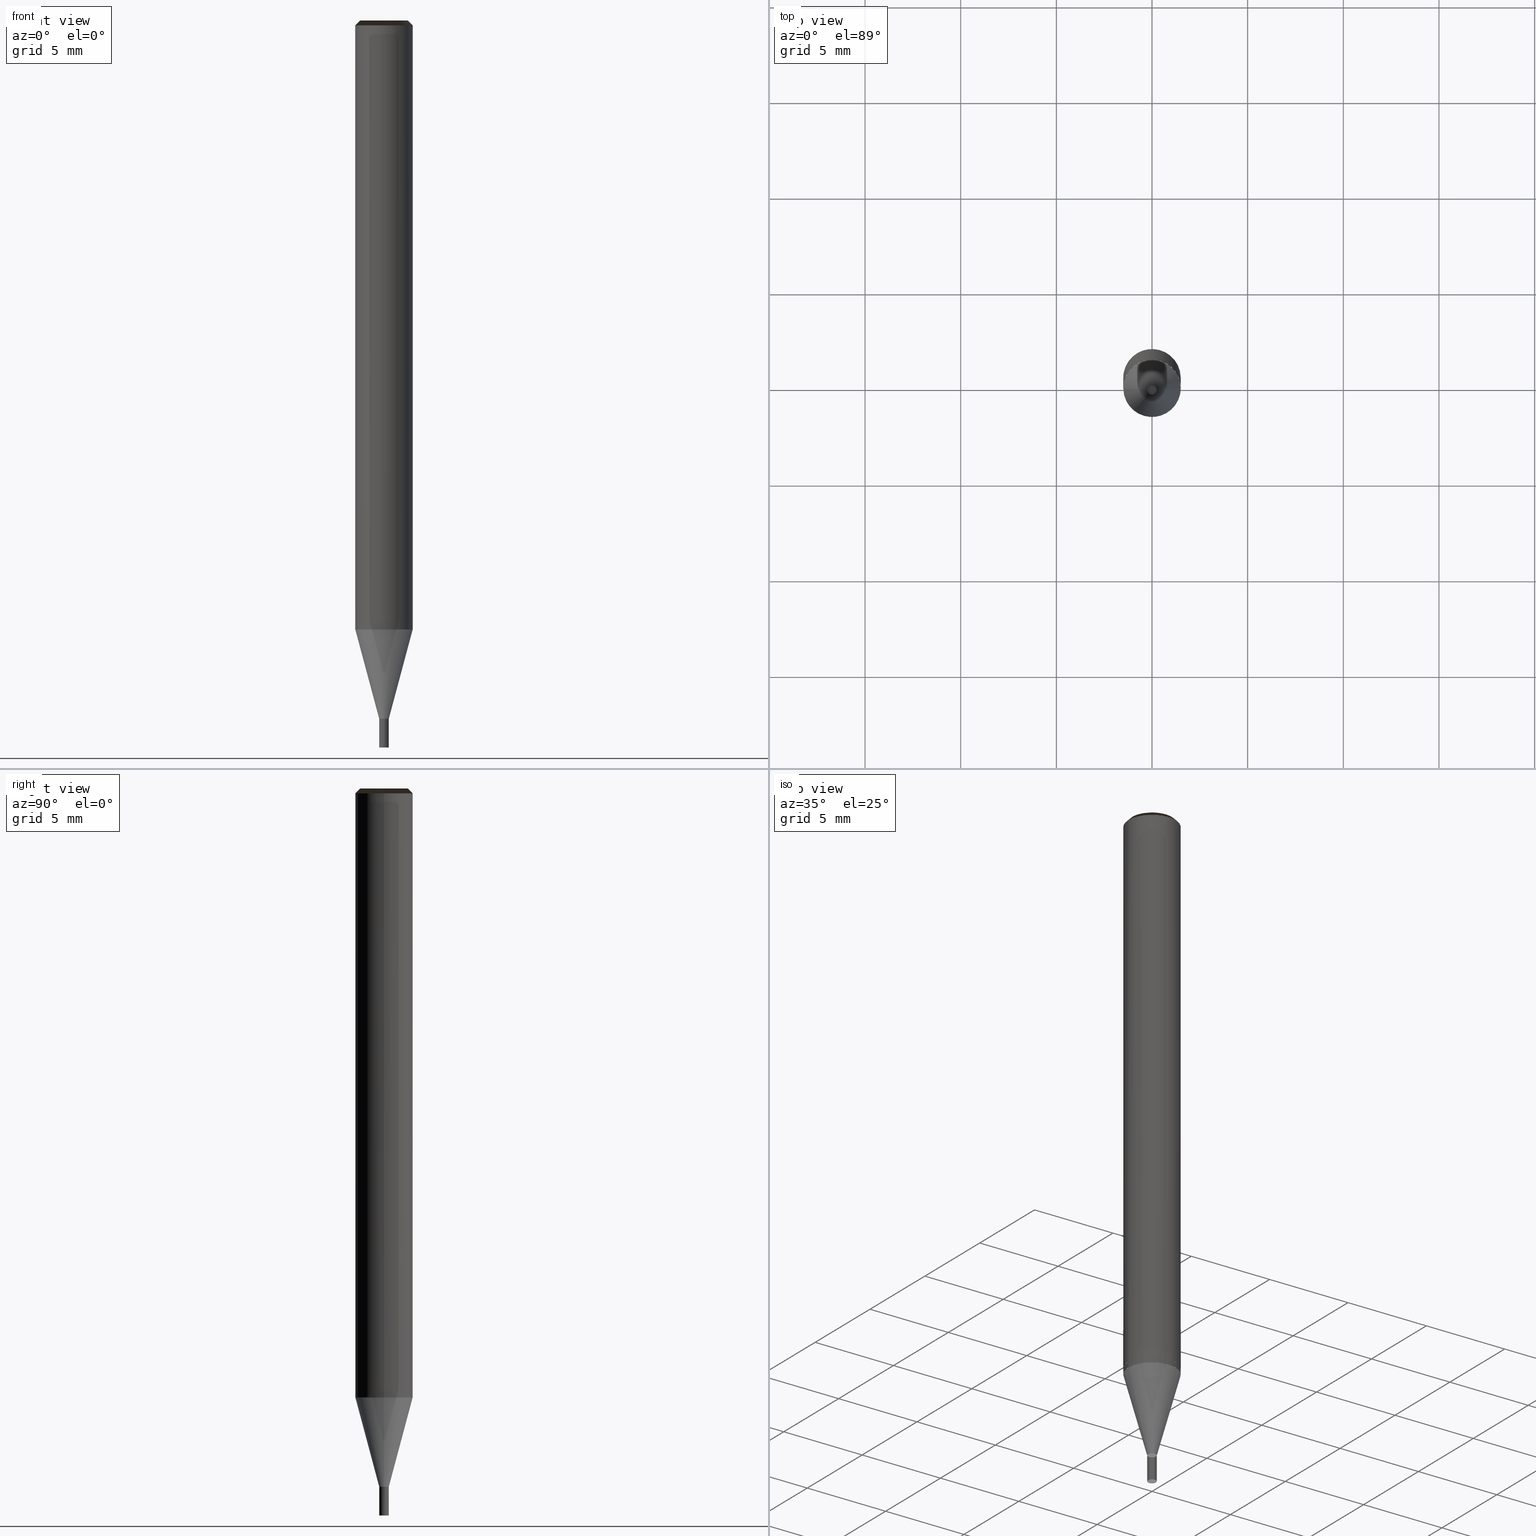
[diagram: canonical four-view strip — front | top / right | iso, engineering-drawing reading convention]
A machine part, canonical four-view strip (front | top / right | iso — engineering-drawing reading convention). The complete STEP part file that produces these views, byte-faithful:
ISO-10303-21;
HEADER;
/* Generated by ISBE GmbH (www.isbe.de) */
/* OPTION: using custom schema-name function */

FILE_DESCRIPTION(
/* description */ (''),
/* implementation_level */ '2;1');

FILE_NAME(
/*name*/ 'Drawing No  1000050',
/*time_stamp*/'2021-9-29T13:37:19',
/*author*/ ('ISBE GmbH'),
/*organization*/ ('ISBE GmbH'),
/*preprocessor_version*/ 'STEP IO v1.0',
/*originating_system*/ '',
/*authorisation*/ '');

FILE_SCHEMA (('AUTOMOTIVE_DESIGN'));
ENDSEC;

DATA;
#10=SHAPE_DEFINITION_REPRESENTATION(#11,#57);
#11=PRODUCT_DEFINITION_SHAPE('Document','',#13);
#12=PRODUCT_DEFINITION_CONTEXT('3D Mechanical Parts',#17,'design');
#13=PRODUCT_DEFINITION('A','First version',#14,#12);
#14=PRODUCT_DEFINITION_FORMATION_WITH_SPECIFIED_SOURCE('A','First version',#19,.MADE.);
#15=PRODUCT_RELATED_PRODUCT_CATEGORY('tool','tool',(#19));
#16=APPLICATION_PROTOCOL_DEFINITION('Draft International Standard', 'automotive_design',1999,#17);
#17=APPLICATION_CONTEXT('data for automotive mechanical design processes');
#18=PRODUCT_CONTEXT('3D Mechanical Parts',#17,'mechanical');
#19=PRODUCT('Document','Document','ISBE converted to STEP',(#18));
#20=(
LENGTH_UNIT()
NAMED_UNIT(*)
SI_UNIT(.MILLI.,.METRE.)
);
#21=(
NAMED_UNIT(*)
PLANE_ANGLE_UNIT()
SI_UNIT($,.RADIAN.)
);
#22=DIMENSIONAL_EXPONENTS(0.,0.,0.,0.,0.,0.,0.);
#23=PLANE_ANGLE_MEASURE_WITH_UNIT(PLANE_ANGLE_MEASURE(0.01745329252),#21);
#24=(
CONVERSION_BASED_UNIT('DEGREES',#23)
NAMED_UNIT(#22)
PLANE_ANGLE_UNIT()
);
#25=(
NAMED_UNIT(*)
SI_UNIT($,.STERADIAN.)
SOLID_ANGLE_UNIT()
);
#26=UNCERTAINTY_MEASURE_WITH_UNIT(LENGTH_MEASURE(0.001),#20, 'DISTANCE_ACCURACY_VALUE', 'Maximum model space distance between geometric entities at asserted connectivities');
#27=(
GEOMETRIC_REPRESENTATION_CONTEXT(3)
GLOBAL_UNCERTAINTY_ASSIGNED_CONTEXT((#26))
GLOBAL_UNIT_ASSIGNED_CONTEXT((#25,#24,#20))
REPRESENTATION_CONTEXT('ID1','3D')
);
#28=CARTESIAN_POINT('',(0.0,0.0,0.0));
#29=DIRECTION('',(1.0,0.0,0.0));
#30=DIRECTION('',(0.0,0.0,1.0));
#31=AXIS2_PLACEMENT_3D('',#28,#30,#29);
#32=CARTESIAN_POINT('',(0.0,0.0,0.0));
#33=DIRECTION('',(1.0,0.0,0.0));
#34=DIRECTION('',(0.0,0.0,1.0));
#35=AXIS2_PLACEMENT_3D('',#32,#34,#33);
#36=CARTESIAN_POINT('',(0.0,0.0,0.0));
#37=DIRECTION('',(1.0,0.0,0.0));
#38=DIRECTION('',(0.0,0.0,1.0));
#39=AXIS2_PLACEMENT_3D('',#36,#38,#37);
#40=CARTESIAN_POINT('',(0.0,0.0,0.0));
#41=DIRECTION('',(0.0,0.0,1.0));
#42=DIRECTION('',(1.0,0.0,0.0));
#43=AXIS2_PLACEMENT_3D('MCS',#40,#42,#41);
#44=CARTESIAN_POINT('',(0.0,0.0,31.5));
#45=DIRECTION('',(0.0,0.0,1.0));
#46=DIRECTION('',(1.0,0.0,0.0));
#47=AXIS2_PLACEMENT_3D('PCS',#44,#46,#45);
#48=CARTESIAN_POINT('',(0.0,0.0,-6.5));
#49=DIRECTION('',(0.0,0.0,1.0));
#50=DIRECTION('',(1.0,0.0,0.0));
#51=AXIS2_PLACEMENT_3D('CIP',#48,#50,#49);
#52=CARTESIAN_POINT('',(0.0,-0.25,-6.5));
#53=DIRECTION('',(0.0,0.0,1.0));
#54=DIRECTION('',(1.0,0.0,0.0));
#55=AXIS2_PLACEMENT_3D('CRP',#52,#54,#53);
#57=SHAPE_REPRESENTATION('Document',(#31,#35,#39,#43,#47,#51,#55),#27);
#58=DIRECTION('',(1.0,0.0,0.0));
#59=DIRECTION('',(0.0,0.0,1.0));
#60=CARTESIAN_POINT('',(-0.014565593187,0.003583782237,-6.5));
#61=CARTESIAN_POINT('',(-0.015293311208,0.000626112393,-6.5));
#62=CARTESIAN_POINT('',(-0.017871776655,-0.00985356418,-6.5));
#63=CARTESIAN_POINT('',(-0.019495493568,-0.01645284908,-6.5));
#64=CARTESIAN_POINT('',(-0.020941232718,-0.022328777618,-6.5));
#65=CARTESIAN_POINT('',(-0.022309328341,-0.02788913898,-6.5));
#66=CARTESIAN_POINT('',(-0.023634985772,-0.033277018481,-6.5));
#67=CARTESIAN_POINT('',(-0.024934494895,-0.038558623214,-6.5));
#68=CARTESIAN_POINT('',(-0.02621660844,-0.043769526969,-6.5));
#69=CARTESIAN_POINT('',(-0.027486505819,-0.048930780469,-6.5));
#70=CARTESIAN_POINT('',(-0.028747469054,-0.054055722859,-6.5));
#71=CARTESIAN_POINT('',(-0.030001687771,-0.059153253452,-6.5));
#72=CARTESIAN_POINT('',(-0.031250682995,-0.064229554168,-6.5));
#73=CARTESIAN_POINT('',(-0.032495546362,-0.069289061743,-6.5));
#74=CARTESIAN_POINT('',(-0.03373708277,-0.074335047535,-6.5));
#75=CARTESIAN_POINT('',(-0.034975899355,-0.079369979125,-6.5));
#76=CARTESIAN_POINT('',(-0.036212463074,-0.08439575438,-6.5));
#77=CARTESIAN_POINT('',(-0.037447139179,-0.089413857789,-6.5));
#78=CARTESIAN_POINT('',(-0.03868021761,-0.094425467763,-6.5));
#79=CARTESIAN_POINT('',(-0.039911931546,-0.099431532006,-6.5));
#80=CARTESIAN_POINT('',(-0.041142470701,-0.104432821577,-6.5));
#81=CARTESIAN_POINT('',(-0.04237199104,-0.10942997037,-6.5));
#82=CARTESIAN_POINT('',(-0.043600621994,-0.114423504425,-6.5));
#83=CARTESIAN_POINT('',(-0.044828471885,-0.119413864001,-6.5));
#84=CARTESIAN_POINT('',(-0.046055632078,-0.124401420434,-6.5));
#85=CARTESIAN_POINT('',(-0.047282180183,-0.129386489153,-6.5));
#86=CARTESIAN_POINT('',(-0.048508182556,-0.134369339845,-6.5));
#87=CARTESIAN_POINT('',(-0.04973369627,-0.13935020448,-6.5));
#88=CARTESIAN_POINT('',(-0.050958770691,-0.144329283695,-6.5));
#89=CARTESIAN_POINT('',(-0.052183448738,-0.149306751924,-6.5));
#90=CARTESIAN_POINT('',(-0.053407767904,-0.154282761548,-6.5));
#91=CARTESIAN_POINT('',(-0.054631761088,-0.15925744628,-6.5));
#92=CARTESIAN_POINT('',(-0.05585545728,-0.164230923946,-6.5));
#93=CARTESIAN_POINT('',(-0.057078882126,-0.169203298778,-6.5));
#94=CARTESIAN_POINT('',(-0.058302058396,-0.174174663323,-6.5));
#95=CARTESIAN_POINT('',(-0.05952500638,-0.17914510004,-6.5));
#96=CARTESIAN_POINT('',(-0.060747744212,-0.184114682638,-6.5));
#97=CARTESIAN_POINT('',(-0.061970288155,-0.189083477209,-6.5));
#98=CARTESIAN_POINT('',(-0.063192652832,-0.19405154319,-6.5));
#99=CARTESIAN_POINT('',(-0.064414851431,-0.199018934178,-6.5));
#100=CARTESIAN_POINT('',(-0.065636895875,-0.203985698633,-6.5));
#101=CARTESIAN_POINT('',(-0.066858796972,-0.20895188048,-6.5));
#102=CARTESIAN_POINT('',(-0.06808056454,-0.213917519627,-6.5));
#103=CARTESIAN_POINT('',(-0.069302207522,-0.218882652414,-6.5));
#104=CARTESIAN_POINT('',(-0.070523734076,-0.223847312005,-6.5));
#105=CARTESIAN_POINT('',(-0.071745151664,-0.228811528727,-6.5));
#106=CARTESIAN_POINT('',(-0.072966467124,-0.233775330366,-6.5));
#107=CARTESIAN_POINT('',(-0.074187686732,-0.238738742431,-6.5));
#108=CARTESIAN_POINT('',(-0.047102552744,-0.245522604917,-6.451612903226));
#109=CARTESIAN_POINT('',(-0.019429861306,-0.249243817355,-6.403225806452));
#110=CARTESIAN_POINT('',(0.008485198306,-0.249855961325,-6.354838709677));
#111=CARTESIAN_POINT('',(0.036294413517,-0.247351400941,-6.306451612903));
#112=CARTESIAN_POINT('',(0.063650892055,-0.241761378099,-6.258064516129));
#113=CARTESIAN_POINT('',(0.090213389088,-0.23315562277,-6.209677419355));
#114=CARTESIAN_POINT('',(0.11565056391,-0.221641483182,-6.161290322581));
#115=CARTESIAN_POINT('',(0.139645113093,-0.207362586764,-6.112903225806));
#116=CARTESIAN_POINT('',(0.161897728523,-0.190497048531,-6.064516129032));
#117=CARTESIAN_POINT('',(0.18213083098,-0.171255249282,-6.016129032258));
#118=CARTESIAN_POINT('',(0.200092032655,-0.149877211303,-5.967741935484));
#119=CARTESIAN_POINT('',(0.215557285439,-0.126629604336,-5.91935483871));
#120=CARTESIAN_POINT('',(0.228333675701,-0.10180241913,-5.870967741935));
#121=CARTESIAN_POINT('',(0.238261830694,-0.075705350103,-5.822580645161));
#122=CARTESIAN_POINT('',(0.245217906569,-0.048663932207,-5.774193548387));
#123=CARTESIAN_POINT('',(0.249115133205,-0.021015480208,-5.725806451613));
#124=CARTESIAN_POINT('',(0.249904896579,0.006895118983,-5.677419354839));
#125=CARTESIAN_POINT('',(0.24757734518,0.03471970843,-5.629032258065));
#126=CARTESIAN_POINT('',(0.242161512895,0.062111204082,-5.58064516129));
#127=CARTESIAN_POINT('',(0.233724956838,0.088727924302,-5.532258064516));
#128=CARTESIAN_POINT('',(0.222372914648,0.114237852007,-5.483870967742));
#129=CARTESIAN_POINT('',(0.208246991747,0.138322776246,-5.435483870968));
#130=CARTESIAN_POINT('',(0.191523394961,0.160682261569,-5.387096774194));
#131=CARTESIAN_POINT('',(0.172410734508,0.181037395658,-5.338709677419));
#132=CARTESIAN_POINT('',(0.151147421798,0.199134268482,-5.290322580645));
#133=CARTESIAN_POINT('',(0.127998695488,0.21474713957,-5.241935483871));
#134=CARTESIAN_POINT('',(0.10325331289,0.227681253899,-5.193548387097));
#135=CARTESIAN_POINT('',(0.077219948016,0.237775271272,-5.145161290323));
#136=CARTESIAN_POINT('',(0.050223341173,0.24490327887,-5.096774193548));
#137=CARTESIAN_POINT('',(0.022600248152,0.248976361897,-5.048387096774));
#138=CARTESIAN_POINT('',(-0.005304760464,0.249943712696,-5.0));
#139=CARTESIAN_POINT('',(0.014565593187,-0.003583782237,-6.5));
#140=CARTESIAN_POINT('',(0.015293311208,-0.000626112393,-6.5));
#141=CARTESIAN_POINT('',(0.017871776655,0.00985356418,-6.5));
#142=CARTESIAN_POINT('',(0.019495493568,0.01645284908,-6.5));
#143=CARTESIAN_POINT('',(0.020941232718,0.022328777618,-6.5));
#144=CARTESIAN_POINT('',(0.022309328341,0.02788913898,-6.5));
#145=CARTESIAN_POINT('',(0.023634985772,0.033277018481,-6.5));
#146=CARTESIAN_POINT('',(0.024934494895,0.038558623214,-6.5));
#147=CARTESIAN_POINT('',(0.02621660844,0.043769526969,-6.5));
#148=CARTESIAN_POINT('',(0.027486505819,0.048930780469,-6.5));
#149=CARTESIAN_POINT('',(0.028747469054,0.054055722859,-6.5));
#150=CARTESIAN_POINT('',(0.030001687771,0.059153253452,-6.5));
#151=CARTESIAN_POINT('',(0.031250682995,0.064229554168,-6.5));
#152=CARTESIAN_POINT('',(0.032495546362,0.069289061743,-6.5));
#153=CARTESIAN_POINT('',(0.03373708277,0.074335047535,-6.5));
#154=CARTESIAN_POINT('',(0.034975899355,0.079369979125,-6.5));
#155=CARTESIAN_POINT('',(0.036212463074,0.08439575438,-6.5));
#156=CARTESIAN_POINT('',(0.037447139179,0.089413857789,-6.5));
#157=CARTESIAN_POINT('',(0.03868021761,0.094425467763,-6.5));
#158=CARTESIAN_POINT('',(0.039911931546,0.099431532006,-6.5));
#159=CARTESIAN_POINT('',(0.041142470701,0.104432821577,-6.5));
#160=CARTESIAN_POINT('',(0.04237199104,0.10942997037,-6.5));
#161=CARTESIAN_POINT('',(0.043600621994,0.114423504425,-6.5));
#162=CARTESIAN_POINT('',(0.044828471885,0.119413864001,-6.5));
#163=CARTESIAN_POINT('',(0.046055632078,0.124401420434,-6.5));
#164=CARTESIAN_POINT('',(0.047282180183,0.129386489153,-6.5));
#165=CARTESIAN_POINT('',(0.048508182556,0.134369339845,-6.5));
#166=CARTESIAN_POINT('',(0.04973369627,0.13935020448,-6.5));
#167=CARTESIAN_POINT('',(0.050958770691,0.144329283695,-6.5));
#168=CARTESIAN_POINT('',(0.052183448738,0.149306751924,-6.5));
#169=CARTESIAN_POINT('',(0.053407767904,0.154282761548,-6.5));
#170=CARTESIAN_POINT('',(0.054631761088,0.15925744628,-6.5));
#171=CARTESIAN_POINT('',(0.05585545728,0.164230923946,-6.5));
#172=CARTESIAN_POINT('',(0.057078882126,0.169203298778,-6.5));
#173=CARTESIAN_POINT('',(0.058302058396,0.174174663323,-6.5));
#174=CARTESIAN_POINT('',(0.05952500638,0.17914510004,-6.5));
#175=CARTESIAN_POINT('',(0.060747744212,0.184114682638,-6.5));
#176=CARTESIAN_POINT('',(0.061970288155,0.189083477209,-6.5));
#177=CARTESIAN_POINT('',(0.063192652832,0.19405154319,-6.5));
#178=CARTESIAN_POINT('',(0.064414851431,0.199018934178,-6.5));
#179=CARTESIAN_POINT('',(0.065636895875,0.203985698633,-6.5));
#180=CARTESIAN_POINT('',(0.066858796972,0.20895188048,-6.5));
#181=CARTESIAN_POINT('',(0.06808056454,0.213917519627,-6.5));
#182=CARTESIAN_POINT('',(0.069302207522,0.218882652414,-6.5));
#183=CARTESIAN_POINT('',(0.070523734076,0.223847312005,-6.5));
#184=CARTESIAN_POINT('',(0.071745151664,0.228811528727,-6.5));
#185=CARTESIAN_POINT('',(0.072966467124,0.233775330366,-6.5));
#186=CARTESIAN_POINT('',(0.074187686732,0.238738742431,-6.5));
#187=CARTESIAN_POINT('',(0.047102552744,0.245522604917,-6.451612903226));
#188=CARTESIAN_POINT('',(0.019429861306,0.249243817355,-6.403225806452));
#189=CARTESIAN_POINT('',(-0.008485198306,0.249855961325,-6.354838709677));
#190=CARTESIAN_POINT('',(-0.036294413517,0.247351400941,-6.306451612903));
#191=CARTESIAN_POINT('',(-0.063650892055,0.241761378099,-6.258064516129));
#192=CARTESIAN_POINT('',(-0.090213389088,0.23315562277,-6.209677419355));
#193=CARTESIAN_POINT('',(-0.11565056391,0.221641483182,-6.161290322581));
#194=CARTESIAN_POINT('',(-0.139645113093,0.207362586764,-6.112903225806));
#195=CARTESIAN_POINT('',(-0.161897728523,0.190497048531,-6.064516129032));
#196=CARTESIAN_POINT('',(-0.18213083098,0.171255249282,-6.016129032258));
#197=CARTESIAN_POINT('',(-0.200092032655,0.149877211303,-5.967741935484));
#198=CARTESIAN_POINT('',(-0.215557285439,0.126629604336,-5.91935483871));
#199=CARTESIAN_POINT('',(-0.228333675701,0.10180241913,-5.870967741935));
#200=CARTESIAN_POINT('',(-0.238261830694,0.075705350103,-5.822580645161));
#201=CARTESIAN_POINT('',(-0.245217906569,0.048663932207,-5.774193548387));
#202=CARTESIAN_POINT('',(-0.249115133205,0.021015480208,-5.725806451613));
#203=CARTESIAN_POINT('',(-0.249904896579,-0.006895118983,-5.677419354839));
#204=CARTESIAN_POINT('',(-0.24757734518,-0.03471970843,-5.629032258065));
#205=CARTESIAN_POINT('',(-0.242161512895,-0.062111204082,-5.58064516129));
#206=CARTESIAN_POINT('',(-0.233724956838,-0.088727924302,-5.532258064516));
#207=CARTESIAN_POINT('',(-0.222372914648,-0.114237852007,-5.483870967742));
#208=CARTESIAN_POINT('',(-0.208246991747,-0.138322776246,-5.435483870968));
#209=CARTESIAN_POINT('',(-0.191523394961,-0.160682261569,-5.387096774194));
#210=CARTESIAN_POINT('',(-0.172410734508,-0.181037395658,-5.338709677419));
#211=CARTESIAN_POINT('',(-0.151147421798,-0.199134268482,-5.290322580645));
#212=CARTESIAN_POINT('',(-0.127998695488,-0.21474713957,-5.241935483871));
#213=CARTESIAN_POINT('',(-0.10325331289,-0.227681253899,-5.193548387097));
#214=CARTESIAN_POINT('',(-0.077219948016,-0.237775271272,-5.145161290323));
#215=CARTESIAN_POINT('',(-0.050223341173,-0.24490327887,-5.096774193548));
#216=CARTESIAN_POINT('',(-0.022600248152,-0.248976361897,-5.048387096774));
#217=CARTESIAN_POINT('',(0.005304760464,-0.249943712696,-5.0));
#218=CARTESIAN_POINT('',(0.0,0.0,-6.5));
#219=CARTESIAN_POINT('',(0.25,0.0,-6.5));
#220=CARTESIAN_POINT('',(0.25,0.25,-6.5));
#221=CARTESIAN_POINT('',(0.0,0.25,-6.5));
#222=CARTESIAN_POINT('',(-0.25,0.25,-6.5));
#223=CARTESIAN_POINT('',(-0.25,0.0,-6.5));
#224=CARTESIAN_POINT('',(0.25,0.0,-5.0));
#225=CARTESIAN_POINT('',(0.25,0.25,-5.0));
#226=CARTESIAN_POINT('',(0.0,0.25,-5.0));
#227=CARTESIAN_POINT('',(-0.25,0.25,-5.0));
#228=CARTESIAN_POINT('',(-0.25,0.0,-5.0));
#229=CARTESIAN_POINT('',(0.0,0.0,-5.0));
#230=CARTESIAN_POINT('',(-0.25,-0.25,-6.5));
#231=CARTESIAN_POINT('',(0.0,-0.25,-6.5));
#232=CARTESIAN_POINT('',(0.25,-0.25,-6.5));
#233=CARTESIAN_POINT('',(-0.25,-0.25,-5.0));
#234=CARTESIAN_POINT('',(0.0,-0.25,-5.0));
#235=CARTESIAN_POINT('',(0.25,-0.25,-5.0));
#236=CARTESIAN_POINT('',(1.5,0.0,-0.334936490539));
#237=CARTESIAN_POINT('',(1.5,1.5,-0.334936490539));
#238=CARTESIAN_POINT('',(0.0,1.5,-0.334936490539));
#239=CARTESIAN_POINT('',(-1.5,1.5,-0.334936490539));
#240=CARTESIAN_POINT('',(-1.5,0.0,-0.334936490539));
#241=CARTESIAN_POINT('',(1.5,0.0,0.0));
#242=CARTESIAN_POINT('',(1.5,1.5,0.0));
#243=CARTESIAN_POINT('',(0.0,1.5,0.0));
#244=CARTESIAN_POINT('',(-1.5,1.5,0.0));
#245=CARTESIAN_POINT('',(-1.5,0.0,0.0));
#246=CARTESIAN_POINT('',(1.5,0.0,31.25));
#247=CARTESIAN_POINT('',(1.5,1.5,31.25));
#248=CARTESIAN_POINT('',(0.0,1.5,31.25));
#249=CARTESIAN_POINT('',(-1.5,1.5,31.25));
#250=CARTESIAN_POINT('',(-1.5,0.0,31.25));
#251=CARTESIAN_POINT('',(1.25,0.0,31.5));
#252=CARTESIAN_POINT('',(1.25,1.25,31.5));
#253=CARTESIAN_POINT('',(0.0,1.25,31.5));
#254=CARTESIAN_POINT('',(-1.25,1.25,31.5));
#255=CARTESIAN_POINT('',(-1.25,0.0,31.5));
#256=CARTESIAN_POINT('',(0.0,0.0,31.5));
#257=CARTESIAN_POINT('',(-1.5,-1.5,-0.334936490539));
#258=CARTESIAN_POINT('',(0.0,-1.5,-0.334936490539));
#259=CARTESIAN_POINT('',(1.5,-1.5,-0.334936490539));
#260=CARTESIAN_POINT('',(-1.5,-1.5,0.0));
#261=CARTESIAN_POINT('',(0.0,-1.5,0.0));
#262=CARTESIAN_POINT('',(1.5,-1.5,0.0));
#263=CARTESIAN_POINT('',(-1.5,-1.5,31.25));
#264=CARTESIAN_POINT('',(0.0,-1.5,31.25));
#265=CARTESIAN_POINT('',(1.5,-1.5,31.25));
#266=CARTESIAN_POINT('',(-1.25,-1.25,31.5));
#267=CARTESIAN_POINT('',(0.0,-1.25,31.5));
#268=CARTESIAN_POINT('',(1.25,-1.25,31.5));
#269=(
BOUNDED_CURVE()
B_SPLINE_CURVE(1,(#60,#61,#62,#63,#64,#65,#66,#67,#68,#69,#70,#71,#72,#73,#74,#75,#76,#77,#78,#79,#80,#81,#82,#83,#84,#85,#86,#87,#88,#89,#90,#91,#92,#93,#94,#95,#96,#97,#98,#99,#100,#101,#102,#103,#104,#105,#106,#107,#108,#109,#110,#111,#112,#113,#114,#115,#116,#117,#118,#119,#120,#121,#122,#123,#124,#125,#126,#127,#128,#129,#130,#131,#132,#133,#134,#135,#136,#137,#138),.UNSPECIFIED.,.F.,.F.)
B_SPLINE_CURVE_WITH_KNOTS((2,1,1,1,1,1,1,1,1,1,1,1,1,1,1,1,1,1,1,1,1,1,1,1,1,1,1,1,1,1,1,1,1,1,1,1,1,1,1,1,1,1,1,1,1,1,1,1,1,1,1,1,1,1,1,1,1,1,1,1,1,1,1,1,1,1,1,1,1,1,1,1,1,1,1,1,1,1,2),
(0.0,0.001537255502,0.006984090789,0.010414083843,0.013468110814,0.016358121041,0.019158483436,0.021903609283,0.024611988138,0.027294561164,0.029958261408,0.03260771431,0.035246132936,0.037875823289,0.040498485666,0.043115402597,0.045727560501,0.048335730947,0.050940526415,0.053542439478,0.056141870894,0.058739150131,0.0613345506,0.063928301127,0.066520594714,0.069111595306,0.071701443073,0.074290258583,0.076878146117,0.079465196337,0.082051488444,0.084637091936,0.087222068052,0.089806470968,0.092390348785,0.094973744361,0.097556696007,0.100139238074,0.102721401455,0.105303214007,0.107884700916,0.110465885015,0.113046787043,0.11562742589,0.118207818792,0.120787981512,0.123367928491,0.125947672989,0.154142909344,0.182338145699,0.210533382055,0.23872861841,0.266923854765,0.29511909112,0.323314327475,0.35150956383,0.379704800186,0.407900036541,0.436095272896,0.464290509251,0.492485745606,0.520680981962,0.548876218317,0.577071454672,0.605266691027,0.633461927382,0.661657163738,0.689852400093,0.718047636448,0.746242872803,0.774438109158,0.802633345514,0.830828581869,0.859023818224,0.887219054579,0.915414290934,0.94360952729,0.971804763645,1.0),.UNSPECIFIED.)
CURVE()
GEOMETRIC_REPRESENTATION_ITEM()
RATIONAL_B_SPLINE_CURVE((1.0,1.0,1.0,1.0,1.0,1.0,1.0,1.0,1.0,1.0,1.0,1.0,1.0,1.0,1.0,1.0,1.0,1.0,1.0,1.0,1.0,1.0,1.0,1.0,1.0,1.0,1.0,1.0,1.0,1.0,1.0,1.0,1.0,1.0,1.0,1.0,1.0,1.0,1.0,1.0,1.0,1.0,1.0,1.0,1.0,1.0,1.0,1.0,1.0,1.0,1.0,1.0,1.0,1.0,1.0,1.0,1.0,1.0,1.0,1.0,1.0,1.0,1.0,1.0,1.0,1.0,1.0,1.0,1.0,1.0,1.0,1.0,1.0,1.0,1.0,1.0,1.0,1.0,1.0))
REPRESENTATION_ITEM('')
);
#270=(
BOUNDED_CURVE()
B_SPLINE_CURVE(1,(#139,#140,#141,#142,#143,#144,#145,#146,#147,#148,#149,#150,#151,#152,#153,#154,#155,#156,#157,#158,#159,#160,#161,#162,#163,#164,#165,#166,#167,#168,#169,#170,#171,#172,#173,#174,#175,#176,#177,#178,#179,#180,#181,#182,#183,#184,#185,#186,#187,#188,#189,#190,#191,#192,#193,#194,#195,#196,#197,#198,#199,#200,#201,#202,#203,#204,#205,#206,#207,#208,#209,#210,#211,#212,#213,#214,#215,#216,#217),.UNSPECIFIED.,.F.,.F.)
B_SPLINE_CURVE_WITH_KNOTS((2,1,1,1,1,1,1,1,1,1,1,1,1,1,1,1,1,1,1,1,1,1,1,1,1,1,1,1,1,1,1,1,1,1,1,1,1,1,1,1,1,1,1,1,1,1,1,1,1,1,1,1,1,1,1,1,1,1,1,1,1,1,1,1,1,1,1,1,1,1,1,1,1,1,1,1,1,1,2),
(0.0,0.001537255502,0.006984090789,0.010414083843,0.013468110814,0.016358121041,0.019158483436,0.021903609283,0.024611988138,0.027294561164,0.029958261408,0.03260771431,0.035246132936,0.037875823289,0.040498485666,0.043115402597,0.045727560501,0.048335730947,0.050940526415,0.053542439478,0.056141870894,0.058739150131,0.0613345506,0.063928301127,0.066520594714,0.069111595306,0.071701443073,0.074290258583,0.076878146117,0.079465196337,0.082051488444,0.084637091936,0.087222068052,0.089806470968,0.092390348785,0.094973744361,0.097556696007,0.100139238074,0.102721401455,0.105303214007,0.107884700916,0.110465885015,0.113046787043,0.11562742589,0.118207818792,0.120787981512,0.123367928491,0.125947672989,0.154142909344,0.182338145699,0.210533382055,0.23872861841,0.266923854765,0.29511909112,0.323314327475,0.35150956383,0.379704800186,0.407900036541,0.436095272896,0.464290509251,0.492485745606,0.520680981962,0.548876218317,0.577071454672,0.605266691027,0.633461927382,0.661657163738,0.689852400093,0.718047636448,0.746242872803,0.774438109158,0.802633345514,0.830828581869,0.859023818224,0.887219054579,0.915414290934,0.94360952729,0.971804763645,1.0),.UNSPECIFIED.)
CURVE()
GEOMETRIC_REPRESENTATION_ITEM()
RATIONAL_B_SPLINE_CURVE((1.0,1.0,1.0,1.0,1.0,1.0,1.0,1.0,1.0,1.0,1.0,1.0,1.0,1.0,1.0,1.0,1.0,1.0,1.0,1.0,1.0,1.0,1.0,1.0,1.0,1.0,1.0,1.0,1.0,1.0,1.0,1.0,1.0,1.0,1.0,1.0,1.0,1.0,1.0,1.0,1.0,1.0,1.0,1.0,1.0,1.0,1.0,1.0,1.0,1.0,1.0,1.0,1.0,1.0,1.0,1.0,1.0,1.0,1.0,1.0,1.0,1.0,1.0,1.0,1.0,1.0,1.0,1.0,1.0,1.0,1.0,1.0,1.0,1.0,1.0,1.0,1.0,1.0,1.0))
REPRESENTATION_ITEM('')
);
#271=SHAPE_REPRESENTATION_RELATIONSHIP('','',#57,#272);
#272=GEOMETRICALLY_BOUNDED_WIREFRAME_SHAPE_REPRESENTATION('Curves',(#273,#31),#27);
#273=GEOMETRIC_CURVE_SET('CurveSet',(#269,#270));
#274=(
BOUNDED_SURFACE()
B_SPLINE_SURFACE(1,2,(
(#218,#218,#218,#218,#218),
(#219,#220,#221,#222,#223)
), .UNSPECIFIED.,.F.,.F.,.F.)
B_SPLINE_SURFACE_WITH_KNOTS((2,2),(3,2,3),(
0.0,1.0),(
0.0,0.5,1.0), .UNSPECIFIED.)
GEOMETRIC_REPRESENTATION_ITEM()
RATIONAL_B_SPLINE_SURFACE(((1.0,0.707106781187,1.0,0.707106781187,1.0),
(1.0,0.707106781187,1.0,0.707106781187,1.0)
))
REPRESENTATION_ITEM('')
SURFACE()
);
#275=(
BOUNDED_CURVE()
B_SPLINE_CURVE(1,(#223,#218),.UNSPECIFIED.,.F.,.F.)
B_SPLINE_CURVE_WITH_KNOTS((2,2),
(0.0,1.0),.UNSPECIFIED.)
CURVE()
GEOMETRIC_REPRESENTATION_ITEM()
RATIONAL_B_SPLINE_CURVE((1.0,1.0))
REPRESENTATION_ITEM('')
);
#276=(
BOUNDED_CURVE()
B_SPLINE_CURVE(1,(#218,#219),.UNSPECIFIED.,.F.,.F.)
B_SPLINE_CURVE_WITH_KNOTS((2,2),
(0.0,1.0),.UNSPECIFIED.)
CURVE()
GEOMETRIC_REPRESENTATION_ITEM()
RATIONAL_B_SPLINE_CURVE((1.0,1.0))
REPRESENTATION_ITEM('')
);
#277=(
BOUNDED_CURVE()
B_SPLINE_CURVE(2,(#219,#220,#221,#222,#223),.UNSPECIFIED.,.F.,.F.)
B_SPLINE_CURVE_WITH_KNOTS((3,2,3),
(0.0,0.5,1.0),.UNSPECIFIED.)
CURVE()
GEOMETRIC_REPRESENTATION_ITEM()
RATIONAL_B_SPLINE_CURVE((1.0,0.707106781187,1.0,0.707106781187,1.0))
REPRESENTATION_ITEM('')
);
#278=VERTEX_POINT('',#218);
#279=VERTEX_POINT('',#219);
#280=VERTEX_POINT('',#223);
#281=EDGE_CURVE('',#280,#278,#275,.T.);
#282=EDGE_CURVE('',#278,#279,#276,.T.);
#283=EDGE_CURVE('',#279,#280,#277,.T.);
#284=ORIENTED_EDGE('',*,*,#281,.T.);
#285=ORIENTED_EDGE('',*,*,#282,.T.);
#286=ORIENTED_EDGE('',*,*,#283,.T.);
#287=EDGE_LOOP('',(#284,#285,#286));
#288=FACE_OUTER_BOUND('',#287,.T.);
#289=ADVANCED_FACE('',(#288),#274,.T.);
#290=(
BOUNDED_SURFACE()
B_SPLINE_SURFACE(1,2,(
(#219,#220,#221,#222,#223),
(#224,#225,#226,#227,#228)
), .UNSPECIFIED.,.F.,.F.,.F.)
B_SPLINE_SURFACE_WITH_KNOTS((2,2),(3,2,3),(
0.0,1.0),(
0.0,0.5,1.0), .UNSPECIFIED.)
GEOMETRIC_REPRESENTATION_ITEM()
RATIONAL_B_SPLINE_SURFACE(((1.0,0.707106781187,1.0,0.707106781187,1.0),
(1.0,0.707106781187,1.0,0.707106781187,1.0)
))
REPRESENTATION_ITEM('')
SURFACE()
);
#291=(
BOUNDED_CURVE()
B_SPLINE_CURVE(2,(#223,#222,#221,#220,#219),.UNSPECIFIED.,.F.,.F.)
B_SPLINE_CURVE_WITH_KNOTS((3,2,3),
(0.0,0.5,1.0),.UNSPECIFIED.)
CURVE()
GEOMETRIC_REPRESENTATION_ITEM()
RATIONAL_B_SPLINE_CURVE((1.0,0.707106781187,1.0,0.707106781187,1.0))
REPRESENTATION_ITEM('')
);
#292=(
BOUNDED_CURVE()
B_SPLINE_CURVE(1,(#219,#224),.UNSPECIFIED.,.F.,.F.)
B_SPLINE_CURVE_WITH_KNOTS((2,2),
(0.0,1.0),.UNSPECIFIED.)
CURVE()
GEOMETRIC_REPRESENTATION_ITEM()
RATIONAL_B_SPLINE_CURVE((1.0,1.0))
REPRESENTATION_ITEM('')
);
#293=(
BOUNDED_CURVE()
B_SPLINE_CURVE(2,(#224,#225,#226,#227,#228),.UNSPECIFIED.,.F.,.F.)
B_SPLINE_CURVE_WITH_KNOTS((3,2,3),
(0.0,0.5,1.0),.UNSPECIFIED.)
CURVE()
GEOMETRIC_REPRESENTATION_ITEM()
RATIONAL_B_SPLINE_CURVE((1.0,0.707106781187,1.0,0.707106781187,1.0))
REPRESENTATION_ITEM('')
);
#294=(
BOUNDED_CURVE()
B_SPLINE_CURVE(1,(#228,#223),.UNSPECIFIED.,.F.,.F.)
B_SPLINE_CURVE_WITH_KNOTS((2,2),
(0.0,1.0),.UNSPECIFIED.)
CURVE()
GEOMETRIC_REPRESENTATION_ITEM()
RATIONAL_B_SPLINE_CURVE((1.0,1.0))
REPRESENTATION_ITEM('')
);
#295=VERTEX_POINT('',#219);
#296=VERTEX_POINT('',#223);
#297=VERTEX_POINT('',#224);
#298=VERTEX_POINT('',#228);
#299=EDGE_CURVE('',#296,#295,#291,.T.);
#300=EDGE_CURVE('',#295,#297,#292,.T.);
#301=EDGE_CURVE('',#297,#298,#293,.T.);
#302=EDGE_CURVE('',#298,#296,#294,.T.);
#303=ORIENTED_EDGE('',*,*,#299,.T.);
#304=ORIENTED_EDGE('',*,*,#300,.T.);
#305=ORIENTED_EDGE('',*,*,#301,.T.);
#306=ORIENTED_EDGE('',*,*,#302,.T.);
#307=EDGE_LOOP('',(#303,#304,#305,#306));
#308=FACE_OUTER_BOUND('',#307,.T.);
#309=ADVANCED_FACE('',(#308),#290,.T.);
#310=(
BOUNDED_SURFACE()
B_SPLINE_SURFACE(1,2,(
(#224,#225,#226,#227,#228),
(#229,#229,#229,#229,#229)
), .UNSPECIFIED.,.F.,.F.,.F.)
B_SPLINE_SURFACE_WITH_KNOTS((2,2),(3,2,3),(
0.0,1.0),(
0.0,0.5,1.0), .UNSPECIFIED.)
GEOMETRIC_REPRESENTATION_ITEM()
RATIONAL_B_SPLINE_SURFACE(((1.0,0.707106781187,1.0,0.707106781187,1.0),
(1.0,0.707106781187,1.0,0.707106781187,1.0)
))
REPRESENTATION_ITEM('')
SURFACE()
);
#311=(
BOUNDED_CURVE()
B_SPLINE_CURVE(2,(#228,#227,#226,#225,#224),.UNSPECIFIED.,.F.,.F.)
B_SPLINE_CURVE_WITH_KNOTS((3,2,3),
(0.0,0.5,1.0),.UNSPECIFIED.)
CURVE()
GEOMETRIC_REPRESENTATION_ITEM()
RATIONAL_B_SPLINE_CURVE((1.0,0.707106781187,1.0,0.707106781187,1.0))
REPRESENTATION_ITEM('')
);
#312=(
BOUNDED_CURVE()
B_SPLINE_CURVE(1,(#224,#229),.UNSPECIFIED.,.F.,.F.)
B_SPLINE_CURVE_WITH_KNOTS((2,2),
(0.0,1.0),.UNSPECIFIED.)
CURVE()
GEOMETRIC_REPRESENTATION_ITEM()
RATIONAL_B_SPLINE_CURVE((1.0,1.0))
REPRESENTATION_ITEM('')
);
#313=(
BOUNDED_CURVE()
B_SPLINE_CURVE(1,(#229,#228),.UNSPECIFIED.,.F.,.F.)
B_SPLINE_CURVE_WITH_KNOTS((2,2),
(0.0,1.0),.UNSPECIFIED.)
CURVE()
GEOMETRIC_REPRESENTATION_ITEM()
RATIONAL_B_SPLINE_CURVE((1.0,1.0))
REPRESENTATION_ITEM('')
);
#314=VERTEX_POINT('',#224);
#315=VERTEX_POINT('',#228);
#316=VERTEX_POINT('',#229);
#317=EDGE_CURVE('',#315,#314,#311,.T.);
#318=EDGE_CURVE('',#314,#316,#312,.T.);
#319=EDGE_CURVE('',#316,#315,#313,.T.);
#320=ORIENTED_EDGE('',*,*,#317,.T.);
#321=ORIENTED_EDGE('',*,*,#318,.T.);
#322=ORIENTED_EDGE('',*,*,#319,.T.);
#323=EDGE_LOOP('',(#320,#321,#322));
#324=FACE_OUTER_BOUND('',#323,.T.);
#325=ADVANCED_FACE('',(#324),#310,.T.);
#326=(
BOUNDED_SURFACE()
B_SPLINE_SURFACE(1,2,(
(#218,#218,#218,#218,#218),
(#223,#230,#231,#232,#219)
), .UNSPECIFIED.,.F.,.F.,.F.)
B_SPLINE_SURFACE_WITH_KNOTS((2,2),(3,2,3),(
0.0,1.0),(
0.0,0.5,1.0), .UNSPECIFIED.)
GEOMETRIC_REPRESENTATION_ITEM()
RATIONAL_B_SPLINE_SURFACE(((1.0,0.707106781187,1.0,0.707106781187,1.0),
(1.0,0.707106781187,1.0,0.707106781187,1.0)
))
REPRESENTATION_ITEM('')
SURFACE()
);
#327=(
BOUNDED_CURVE()
B_SPLINE_CURVE(1,(#219,#218),.UNSPECIFIED.,.F.,.F.)
B_SPLINE_CURVE_WITH_KNOTS((2,2),
(0.0,1.0),.UNSPECIFIED.)
CURVE()
GEOMETRIC_REPRESENTATION_ITEM()
RATIONAL_B_SPLINE_CURVE((1.0,1.0))
REPRESENTATION_ITEM('')
);
#328=(
BOUNDED_CURVE()
B_SPLINE_CURVE(1,(#218,#223),.UNSPECIFIED.,.F.,.F.)
B_SPLINE_CURVE_WITH_KNOTS((2,2),
(0.0,1.0),.UNSPECIFIED.)
CURVE()
GEOMETRIC_REPRESENTATION_ITEM()
RATIONAL_B_SPLINE_CURVE((1.0,1.0))
REPRESENTATION_ITEM('')
);
#329=(
BOUNDED_CURVE()
B_SPLINE_CURVE(2,(#223,#230,#231,#232,#219),.UNSPECIFIED.,.F.,.F.)
B_SPLINE_CURVE_WITH_KNOTS((3,2,3),
(0.0,0.5,1.0),.UNSPECIFIED.)
CURVE()
GEOMETRIC_REPRESENTATION_ITEM()
RATIONAL_B_SPLINE_CURVE((1.0,0.707106781187,1.0,0.707106781187,1.0))
REPRESENTATION_ITEM('')
);
#330=VERTEX_POINT('',#218);
#331=VERTEX_POINT('',#219);
#332=VERTEX_POINT('',#223);
#333=EDGE_CURVE('',#331,#330,#327,.T.);
#334=EDGE_CURVE('',#330,#332,#328,.T.);
#335=EDGE_CURVE('',#332,#331,#329,.T.);
#336=ORIENTED_EDGE('',*,*,#333,.T.);
#337=ORIENTED_EDGE('',*,*,#334,.T.);
#338=ORIENTED_EDGE('',*,*,#335,.T.);
#339=EDGE_LOOP('',(#336,#337,#338));
#340=FACE_OUTER_BOUND('',#339,.T.);
#341=ADVANCED_FACE('',(#340),#326,.T.);
#342=(
BOUNDED_SURFACE()
B_SPLINE_SURFACE(1,2,(
(#223,#230,#231,#232,#219),
(#228,#233,#234,#235,#224)
), .UNSPECIFIED.,.F.,.F.,.F.)
B_SPLINE_SURFACE_WITH_KNOTS((2,2),(3,2,3),(
0.0,1.0),(
0.0,0.5,1.0), .UNSPECIFIED.)
GEOMETRIC_REPRESENTATION_ITEM()
RATIONAL_B_SPLINE_SURFACE(((1.0,0.707106781187,1.0,0.707106781187,1.0),
(1.0,0.707106781187,1.0,0.707106781187,1.0)
))
REPRESENTATION_ITEM('')
SURFACE()
);
#343=(
BOUNDED_CURVE()
B_SPLINE_CURVE(2,(#219,#232,#231,#230,#223),.UNSPECIFIED.,.F.,.F.)
B_SPLINE_CURVE_WITH_KNOTS((3,2,3),
(0.0,0.5,1.0),.UNSPECIFIED.)
CURVE()
GEOMETRIC_REPRESENTATION_ITEM()
RATIONAL_B_SPLINE_CURVE((1.0,0.707106781187,1.0,0.707106781187,1.0))
REPRESENTATION_ITEM('')
);
#344=(
BOUNDED_CURVE()
B_SPLINE_CURVE(1,(#223,#228),.UNSPECIFIED.,.F.,.F.)
B_SPLINE_CURVE_WITH_KNOTS((2,2),
(0.0,1.0),.UNSPECIFIED.)
CURVE()
GEOMETRIC_REPRESENTATION_ITEM()
RATIONAL_B_SPLINE_CURVE((1.0,1.0))
REPRESENTATION_ITEM('')
);
#345=(
BOUNDED_CURVE()
B_SPLINE_CURVE(2,(#228,#233,#234,#235,#224),.UNSPECIFIED.,.F.,.F.)
B_SPLINE_CURVE_WITH_KNOTS((3,2,3),
(0.0,0.5,1.0),.UNSPECIFIED.)
CURVE()
GEOMETRIC_REPRESENTATION_ITEM()
RATIONAL_B_SPLINE_CURVE((1.0,0.707106781187,1.0,0.707106781187,1.0))
REPRESENTATION_ITEM('')
);
#346=(
BOUNDED_CURVE()
B_SPLINE_CURVE(1,(#224,#219),.UNSPECIFIED.,.F.,.F.)
B_SPLINE_CURVE_WITH_KNOTS((2,2),
(0.0,1.0),.UNSPECIFIED.)
CURVE()
GEOMETRIC_REPRESENTATION_ITEM()
RATIONAL_B_SPLINE_CURVE((1.0,1.0))
REPRESENTATION_ITEM('')
);
#347=VERTEX_POINT('',#219);
#348=VERTEX_POINT('',#223);
#349=VERTEX_POINT('',#224);
#350=VERTEX_POINT('',#228);
#351=EDGE_CURVE('',#347,#348,#343,.T.);
#352=EDGE_CURVE('',#348,#350,#344,.T.);
#353=EDGE_CURVE('',#350,#349,#345,.T.);
#354=EDGE_CURVE('',#349,#347,#346,.T.);
#355=ORIENTED_EDGE('',*,*,#351,.T.);
#356=ORIENTED_EDGE('',*,*,#352,.T.);
#357=ORIENTED_EDGE('',*,*,#353,.T.);
#358=ORIENTED_EDGE('',*,*,#354,.T.);
#359=EDGE_LOOP('',(#355,#356,#357,#358));
#360=FACE_OUTER_BOUND('',#359,.T.);
#361=ADVANCED_FACE('',(#360),#342,.T.);
#362=(
BOUNDED_SURFACE()
B_SPLINE_SURFACE(1,2,(
(#228,#233,#234,#235,#224),
(#229,#229,#229,#229,#229)
), .UNSPECIFIED.,.F.,.F.,.F.)
B_SPLINE_SURFACE_WITH_KNOTS((2,2),(3,2,3),(
0.0,1.0),(
0.0,0.5,1.0), .UNSPECIFIED.)
GEOMETRIC_REPRESENTATION_ITEM()
RATIONAL_B_SPLINE_SURFACE(((1.0,0.707106781187,1.0,0.707106781187,1.0),
(1.0,0.707106781187,1.0,0.707106781187,1.0)
))
REPRESENTATION_ITEM('')
SURFACE()
);
#363=(
BOUNDED_CURVE()
B_SPLINE_CURVE(2,(#224,#235,#234,#233,#228),.UNSPECIFIED.,.F.,.F.)
B_SPLINE_CURVE_WITH_KNOTS((3,2,3),
(0.0,0.5,1.0),.UNSPECIFIED.)
CURVE()
GEOMETRIC_REPRESENTATION_ITEM()
RATIONAL_B_SPLINE_CURVE((1.0,0.707106781187,1.0,0.707106781187,1.0))
REPRESENTATION_ITEM('')
);
#364=(
BOUNDED_CURVE()
B_SPLINE_CURVE(1,(#228,#229),.UNSPECIFIED.,.F.,.F.)
B_SPLINE_CURVE_WITH_KNOTS((2,2),
(0.0,1.0),.UNSPECIFIED.)
CURVE()
GEOMETRIC_REPRESENTATION_ITEM()
RATIONAL_B_SPLINE_CURVE((1.0,1.0))
REPRESENTATION_ITEM('')
);
#365=(
BOUNDED_CURVE()
B_SPLINE_CURVE(1,(#229,#224),.UNSPECIFIED.,.F.,.F.)
B_SPLINE_CURVE_WITH_KNOTS((2,2),
(0.0,1.0),.UNSPECIFIED.)
CURVE()
GEOMETRIC_REPRESENTATION_ITEM()
RATIONAL_B_SPLINE_CURVE((1.0,1.0))
REPRESENTATION_ITEM('')
);
#366=VERTEX_POINT('',#224);
#367=VERTEX_POINT('',#228);
#368=VERTEX_POINT('',#229);
#369=EDGE_CURVE('',#366,#367,#363,.T.);
#370=EDGE_CURVE('',#367,#368,#364,.T.);
#371=EDGE_CURVE('',#368,#366,#365,.T.);
#372=ORIENTED_EDGE('',*,*,#369,.T.);
#373=ORIENTED_EDGE('',*,*,#370,.T.);
#374=ORIENTED_EDGE('',*,*,#371,.T.);
#375=EDGE_LOOP('',(#372,#373,#374));
#376=FACE_OUTER_BOUND('',#375,.T.);
#377=ADVANCED_FACE('',(#376),#362,.T.);
#378=CLOSED_SHELL('',(#289,#309,#325,#341,#361,#377));
#379=SHAPE_REPRESENTATION_RELATIONSHIP('','',#57,#380);
#380=ADVANCED_BREP_SHAPE_REPRESENTATION('Solid0',(#381,#31),#27);
#381=MANIFOLD_SOLID_BREP('brep',#378);
#382=(
BOUNDED_SURFACE()
B_SPLINE_SURFACE(1,2,(
(#229,#229,#229,#229,#229),
(#224,#225,#226,#227,#228)
), .UNSPECIFIED.,.F.,.F.,.F.)
B_SPLINE_SURFACE_WITH_KNOTS((2,2),(3,2,3),(
0.0,1.0),(
0.0,0.5,1.0), .UNSPECIFIED.)
GEOMETRIC_REPRESENTATION_ITEM()
RATIONAL_B_SPLINE_SURFACE(((1.0,0.707106781187,1.0,0.707106781187,1.0),
(1.0,0.707106781187,1.0,0.707106781187,1.0)
))
REPRESENTATION_ITEM('')
SURFACE()
);
#383=(
BOUNDED_CURVE()
B_SPLINE_CURVE(1,(#228,#229),.UNSPECIFIED.,.F.,.F.)
B_SPLINE_CURVE_WITH_KNOTS((2,2),
(0.0,1.0),.UNSPECIFIED.)
CURVE()
GEOMETRIC_REPRESENTATION_ITEM()
RATIONAL_B_SPLINE_CURVE((1.0,1.0))
REPRESENTATION_ITEM('')
);
#384=(
BOUNDED_CURVE()
B_SPLINE_CURVE(1,(#229,#224),.UNSPECIFIED.,.F.,.F.)
B_SPLINE_CURVE_WITH_KNOTS((2,2),
(0.0,1.0),.UNSPECIFIED.)
CURVE()
GEOMETRIC_REPRESENTATION_ITEM()
RATIONAL_B_SPLINE_CURVE((1.0,1.0))
REPRESENTATION_ITEM('')
);
#385=(
BOUNDED_CURVE()
B_SPLINE_CURVE(2,(#224,#225,#226,#227,#228),.UNSPECIFIED.,.F.,.F.)
B_SPLINE_CURVE_WITH_KNOTS((3,2,3),
(0.0,0.5,1.0),.UNSPECIFIED.)
CURVE()
GEOMETRIC_REPRESENTATION_ITEM()
RATIONAL_B_SPLINE_CURVE((1.0,0.707106781187,1.0,0.707106781187,1.0))
REPRESENTATION_ITEM('')
);
#386=VERTEX_POINT('',#224);
#387=VERTEX_POINT('',#228);
#388=VERTEX_POINT('',#229);
#389=EDGE_CURVE('',#387,#388,#383,.T.);
#390=EDGE_CURVE('',#388,#386,#384,.T.);
#391=EDGE_CURVE('',#386,#387,#385,.T.);
#392=ORIENTED_EDGE('',*,*,#389,.T.);
#393=ORIENTED_EDGE('',*,*,#390,.T.);
#394=ORIENTED_EDGE('',*,*,#391,.T.);
#395=EDGE_LOOP('',(#392,#393,#394));
#396=FACE_OUTER_BOUND('',#395,.T.);
#397=ADVANCED_FACE('',(#396),#382,.T.);
#398=(
BOUNDED_SURFACE()
B_SPLINE_SURFACE(1,2,(
(#224,#225,#226,#227,#228),
(#236,#237,#238,#239,#240)
), .UNSPECIFIED.,.F.,.F.,.F.)
B_SPLINE_SURFACE_WITH_KNOTS((2,2),(3,2,3),(
0.0,1.0),(
0.0,0.5,1.0), .UNSPECIFIED.)
GEOMETRIC_REPRESENTATION_ITEM()
RATIONAL_B_SPLINE_SURFACE(((1.0,0.707106781187,1.0,0.707106781187,1.0),
(1.0,0.707106781187,1.0,0.707106781187,1.0)
))
REPRESENTATION_ITEM('')
SURFACE()
);
#399=(
BOUNDED_CURVE()
B_SPLINE_CURVE(2,(#228,#227,#226,#225,#224),.UNSPECIFIED.,.F.,.F.)
B_SPLINE_CURVE_WITH_KNOTS((3,2,3),
(0.0,0.5,1.0),.UNSPECIFIED.)
CURVE()
GEOMETRIC_REPRESENTATION_ITEM()
RATIONAL_B_SPLINE_CURVE((1.0,0.707106781187,1.0,0.707106781187,1.0))
REPRESENTATION_ITEM('')
);
#400=(
BOUNDED_CURVE()
B_SPLINE_CURVE(1,(#224,#236),.UNSPECIFIED.,.F.,.F.)
B_SPLINE_CURVE_WITH_KNOTS((2,2),
(0.0,1.0),.UNSPECIFIED.)
CURVE()
GEOMETRIC_REPRESENTATION_ITEM()
RATIONAL_B_SPLINE_CURVE((1.0,1.0))
REPRESENTATION_ITEM('')
);
#401=(
BOUNDED_CURVE()
B_SPLINE_CURVE(2,(#236,#237,#238,#239,#240),.UNSPECIFIED.,.F.,.F.)
B_SPLINE_CURVE_WITH_KNOTS((3,2,3),
(0.0,0.5,1.0),.UNSPECIFIED.)
CURVE()
GEOMETRIC_REPRESENTATION_ITEM()
RATIONAL_B_SPLINE_CURVE((1.0,0.707106781187,1.0,0.707106781187,1.0))
REPRESENTATION_ITEM('')
);
#402=(
BOUNDED_CURVE()
B_SPLINE_CURVE(1,(#240,#228),.UNSPECIFIED.,.F.,.F.)
B_SPLINE_CURVE_WITH_KNOTS((2,2),
(0.0,1.0),.UNSPECIFIED.)
CURVE()
GEOMETRIC_REPRESENTATION_ITEM()
RATIONAL_B_SPLINE_CURVE((1.0,1.0))
REPRESENTATION_ITEM('')
);
#403=VERTEX_POINT('',#224);
#404=VERTEX_POINT('',#228);
#405=VERTEX_POINT('',#236);
#406=VERTEX_POINT('',#240);
#407=EDGE_CURVE('',#404,#403,#399,.T.);
#408=EDGE_CURVE('',#403,#405,#400,.T.);
#409=EDGE_CURVE('',#405,#406,#401,.T.);
#410=EDGE_CURVE('',#406,#404,#402,.T.);
#411=ORIENTED_EDGE('',*,*,#407,.T.);
#412=ORIENTED_EDGE('',*,*,#408,.T.);
#413=ORIENTED_EDGE('',*,*,#409,.T.);
#414=ORIENTED_EDGE('',*,*,#410,.T.);
#415=EDGE_LOOP('',(#411,#412,#413,#414));
#416=FACE_OUTER_BOUND('',#415,.T.);
#417=ADVANCED_FACE('',(#416),#398,.T.);
#418=(
BOUNDED_SURFACE()
B_SPLINE_SURFACE(1,2,(
(#236,#237,#238,#239,#240),
(#241,#242,#243,#244,#245)
), .UNSPECIFIED.,.F.,.F.,.F.)
B_SPLINE_SURFACE_WITH_KNOTS((2,2),(3,2,3),(
0.0,1.0),(
0.0,0.5,1.0), .UNSPECIFIED.)
GEOMETRIC_REPRESENTATION_ITEM()
RATIONAL_B_SPLINE_SURFACE(((1.0,0.707106781187,1.0,0.707106781187,1.0),
(1.0,0.707106781187,1.0,0.707106781187,1.0)
))
REPRESENTATION_ITEM('')
SURFACE()
);
#419=(
BOUNDED_CURVE()
B_SPLINE_CURVE(2,(#240,#239,#238,#237,#236),.UNSPECIFIED.,.F.,.F.)
B_SPLINE_CURVE_WITH_KNOTS((3,2,3),
(0.0,0.5,1.0),.UNSPECIFIED.)
CURVE()
GEOMETRIC_REPRESENTATION_ITEM()
RATIONAL_B_SPLINE_CURVE((1.0,0.707106781187,1.0,0.707106781187,1.0))
REPRESENTATION_ITEM('')
);
#420=(
BOUNDED_CURVE()
B_SPLINE_CURVE(1,(#236,#241),.UNSPECIFIED.,.F.,.F.)
B_SPLINE_CURVE_WITH_KNOTS((2,2),
(0.0,1.0),.UNSPECIFIED.)
CURVE()
GEOMETRIC_REPRESENTATION_ITEM()
RATIONAL_B_SPLINE_CURVE((1.0,1.0))
REPRESENTATION_ITEM('')
);
#421=(
BOUNDED_CURVE()
B_SPLINE_CURVE(2,(#241,#242,#243,#244,#245),.UNSPECIFIED.,.F.,.F.)
B_SPLINE_CURVE_WITH_KNOTS((3,2,3),
(0.0,0.5,1.0),.UNSPECIFIED.)
CURVE()
GEOMETRIC_REPRESENTATION_ITEM()
RATIONAL_B_SPLINE_CURVE((1.0,0.707106781187,1.0,0.707106781187,1.0))
REPRESENTATION_ITEM('')
);
#422=(
BOUNDED_CURVE()
B_SPLINE_CURVE(1,(#245,#240),.UNSPECIFIED.,.F.,.F.)
B_SPLINE_CURVE_WITH_KNOTS((2,2),
(0.0,1.0),.UNSPECIFIED.)
CURVE()
GEOMETRIC_REPRESENTATION_ITEM()
RATIONAL_B_SPLINE_CURVE((1.0,1.0))
REPRESENTATION_ITEM('')
);
#423=VERTEX_POINT('',#236);
#424=VERTEX_POINT('',#240);
#425=VERTEX_POINT('',#241);
#426=VERTEX_POINT('',#245);
#427=EDGE_CURVE('',#424,#423,#419,.T.);
#428=EDGE_CURVE('',#423,#425,#420,.T.);
#429=EDGE_CURVE('',#425,#426,#421,.T.);
#430=EDGE_CURVE('',#426,#424,#422,.T.);
#431=ORIENTED_EDGE('',*,*,#427,.T.);
#432=ORIENTED_EDGE('',*,*,#428,.T.);
#433=ORIENTED_EDGE('',*,*,#429,.T.);
#434=ORIENTED_EDGE('',*,*,#430,.T.);
#435=EDGE_LOOP('',(#431,#432,#433,#434));
#436=FACE_OUTER_BOUND('',#435,.T.);
#437=ADVANCED_FACE('',(#436),#418,.T.);
#438=(
BOUNDED_SURFACE()
B_SPLINE_SURFACE(1,2,(
(#241,#242,#243,#244,#245),
(#246,#247,#248,#249,#250)
), .UNSPECIFIED.,.F.,.F.,.F.)
B_SPLINE_SURFACE_WITH_KNOTS((2,2),(3,2,3),(
0.0,1.0),(
0.0,0.5,1.0), .UNSPECIFIED.)
GEOMETRIC_REPRESENTATION_ITEM()
RATIONAL_B_SPLINE_SURFACE(((1.0,0.707106781187,1.0,0.707106781187,1.0),
(1.0,0.707106781187,1.0,0.707106781187,1.0)
))
REPRESENTATION_ITEM('')
SURFACE()
);
#439=(
BOUNDED_CURVE()
B_SPLINE_CURVE(2,(#245,#244,#243,#242,#241),.UNSPECIFIED.,.F.,.F.)
B_SPLINE_CURVE_WITH_KNOTS((3,2,3),
(0.0,0.5,1.0),.UNSPECIFIED.)
CURVE()
GEOMETRIC_REPRESENTATION_ITEM()
RATIONAL_B_SPLINE_CURVE((1.0,0.707106781187,1.0,0.707106781187,1.0))
REPRESENTATION_ITEM('')
);
#440=(
BOUNDED_CURVE()
B_SPLINE_CURVE(1,(#241,#246),.UNSPECIFIED.,.F.,.F.)
B_SPLINE_CURVE_WITH_KNOTS((2,2),
(0.0,1.0),.UNSPECIFIED.)
CURVE()
GEOMETRIC_REPRESENTATION_ITEM()
RATIONAL_B_SPLINE_CURVE((1.0,1.0))
REPRESENTATION_ITEM('')
);
#441=(
BOUNDED_CURVE()
B_SPLINE_CURVE(2,(#246,#247,#248,#249,#250),.UNSPECIFIED.,.F.,.F.)
B_SPLINE_CURVE_WITH_KNOTS((3,2,3),
(0.0,0.5,1.0),.UNSPECIFIED.)
CURVE()
GEOMETRIC_REPRESENTATION_ITEM()
RATIONAL_B_SPLINE_CURVE((1.0,0.707106781187,1.0,0.707106781187,1.0))
REPRESENTATION_ITEM('')
);
#442=(
BOUNDED_CURVE()
B_SPLINE_CURVE(1,(#250,#245),.UNSPECIFIED.,.F.,.F.)
B_SPLINE_CURVE_WITH_KNOTS((2,2),
(0.0,1.0),.UNSPECIFIED.)
CURVE()
GEOMETRIC_REPRESENTATION_ITEM()
RATIONAL_B_SPLINE_CURVE((1.0,1.0))
REPRESENTATION_ITEM('')
);
#443=VERTEX_POINT('',#241);
#444=VERTEX_POINT('',#245);
#445=VERTEX_POINT('',#246);
#446=VERTEX_POINT('',#250);
#447=EDGE_CURVE('',#444,#443,#439,.T.);
#448=EDGE_CURVE('',#443,#445,#440,.T.);
#449=EDGE_CURVE('',#445,#446,#441,.T.);
#450=EDGE_CURVE('',#446,#444,#442,.T.);
#451=ORIENTED_EDGE('',*,*,#447,.T.);
#452=ORIENTED_EDGE('',*,*,#448,.T.);
#453=ORIENTED_EDGE('',*,*,#449,.T.);
#454=ORIENTED_EDGE('',*,*,#450,.T.);
#455=EDGE_LOOP('',(#451,#452,#453,#454));
#456=FACE_OUTER_BOUND('',#455,.T.);
#457=ADVANCED_FACE('',(#456),#438,.T.);
#458=(
BOUNDED_SURFACE()
B_SPLINE_SURFACE(1,2,(
(#246,#247,#248,#249,#250),
(#251,#252,#253,#254,#255)
), .UNSPECIFIED.,.F.,.F.,.F.)
B_SPLINE_SURFACE_WITH_KNOTS((2,2),(3,2,3),(
0.0,1.0),(
0.0,0.5,1.0), .UNSPECIFIED.)
GEOMETRIC_REPRESENTATION_ITEM()
RATIONAL_B_SPLINE_SURFACE(((1.0,0.707106781187,1.0,0.707106781187,1.0),
(1.0,0.707106781187,1.0,0.707106781187,1.0)
))
REPRESENTATION_ITEM('')
SURFACE()
);
#459=(
BOUNDED_CURVE()
B_SPLINE_CURVE(2,(#250,#249,#248,#247,#246),.UNSPECIFIED.,.F.,.F.)
B_SPLINE_CURVE_WITH_KNOTS((3,2,3),
(0.0,0.5,1.0),.UNSPECIFIED.)
CURVE()
GEOMETRIC_REPRESENTATION_ITEM()
RATIONAL_B_SPLINE_CURVE((1.0,0.707106781187,1.0,0.707106781187,1.0))
REPRESENTATION_ITEM('')
);
#460=(
BOUNDED_CURVE()
B_SPLINE_CURVE(1,(#246,#251),.UNSPECIFIED.,.F.,.F.)
B_SPLINE_CURVE_WITH_KNOTS((2,2),
(0.0,1.0),.UNSPECIFIED.)
CURVE()
GEOMETRIC_REPRESENTATION_ITEM()
RATIONAL_B_SPLINE_CURVE((1.0,1.0))
REPRESENTATION_ITEM('')
);
#461=(
BOUNDED_CURVE()
B_SPLINE_CURVE(2,(#251,#252,#253,#254,#255),.UNSPECIFIED.,.F.,.F.)
B_SPLINE_CURVE_WITH_KNOTS((3,2,3),
(0.0,0.5,1.0),.UNSPECIFIED.)
CURVE()
GEOMETRIC_REPRESENTATION_ITEM()
RATIONAL_B_SPLINE_CURVE((1.0,0.707106781187,1.0,0.707106781187,1.0))
REPRESENTATION_ITEM('')
);
#462=(
BOUNDED_CURVE()
B_SPLINE_CURVE(1,(#255,#250),.UNSPECIFIED.,.F.,.F.)
B_SPLINE_CURVE_WITH_KNOTS((2,2),
(0.0,1.0),.UNSPECIFIED.)
CURVE()
GEOMETRIC_REPRESENTATION_ITEM()
RATIONAL_B_SPLINE_CURVE((1.0,1.0))
REPRESENTATION_ITEM('')
);
#463=VERTEX_POINT('',#246);
#464=VERTEX_POINT('',#250);
#465=VERTEX_POINT('',#251);
#466=VERTEX_POINT('',#255);
#467=EDGE_CURVE('',#464,#463,#459,.T.);
#468=EDGE_CURVE('',#463,#465,#460,.T.);
#469=EDGE_CURVE('',#465,#466,#461,.T.);
#470=EDGE_CURVE('',#466,#464,#462,.T.);
#471=ORIENTED_EDGE('',*,*,#467,.T.);
#472=ORIENTED_EDGE('',*,*,#468,.T.);
#473=ORIENTED_EDGE('',*,*,#469,.T.);
#474=ORIENTED_EDGE('',*,*,#470,.T.);
#475=EDGE_LOOP('',(#471,#472,#473,#474));
#476=FACE_OUTER_BOUND('',#475,.T.);
#477=ADVANCED_FACE('',(#476),#458,.T.);
#478=(
BOUNDED_SURFACE()
B_SPLINE_SURFACE(1,2,(
(#251,#252,#253,#254,#255),
(#256,#256,#256,#256,#256)
), .UNSPECIFIED.,.F.,.F.,.F.)
B_SPLINE_SURFACE_WITH_KNOTS((2,2),(3,2,3),(
0.0,1.0),(
0.0,0.5,1.0), .UNSPECIFIED.)
GEOMETRIC_REPRESENTATION_ITEM()
RATIONAL_B_SPLINE_SURFACE(((1.0,0.707106781187,1.0,0.707106781187,1.0),
(1.0,0.707106781187,1.0,0.707106781187,1.0)
))
REPRESENTATION_ITEM('')
SURFACE()
);
#479=(
BOUNDED_CURVE()
B_SPLINE_CURVE(2,(#255,#254,#253,#252,#251),.UNSPECIFIED.,.F.,.F.)
B_SPLINE_CURVE_WITH_KNOTS((3,2,3),
(0.0,0.5,1.0),.UNSPECIFIED.)
CURVE()
GEOMETRIC_REPRESENTATION_ITEM()
RATIONAL_B_SPLINE_CURVE((1.0,0.707106781187,1.0,0.707106781187,1.0))
REPRESENTATION_ITEM('')
);
#480=(
BOUNDED_CURVE()
B_SPLINE_CURVE(1,(#251,#256),.UNSPECIFIED.,.F.,.F.)
B_SPLINE_CURVE_WITH_KNOTS((2,2),
(0.0,1.0),.UNSPECIFIED.)
CURVE()
GEOMETRIC_REPRESENTATION_ITEM()
RATIONAL_B_SPLINE_CURVE((1.0,1.0))
REPRESENTATION_ITEM('')
);
#481=(
BOUNDED_CURVE()
B_SPLINE_CURVE(1,(#256,#255),.UNSPECIFIED.,.F.,.F.)
B_SPLINE_CURVE_WITH_KNOTS((2,2),
(0.0,1.0),.UNSPECIFIED.)
CURVE()
GEOMETRIC_REPRESENTATION_ITEM()
RATIONAL_B_SPLINE_CURVE((1.0,1.0))
REPRESENTATION_ITEM('')
);
#482=VERTEX_POINT('',#251);
#483=VERTEX_POINT('',#255);
#484=VERTEX_POINT('',#256);
#485=EDGE_CURVE('',#483,#482,#479,.T.);
#486=EDGE_CURVE('',#482,#484,#480,.T.);
#487=EDGE_CURVE('',#484,#483,#481,.T.);
#488=ORIENTED_EDGE('',*,*,#485,.T.);
#489=ORIENTED_EDGE('',*,*,#486,.T.);
#490=ORIENTED_EDGE('',*,*,#487,.T.);
#491=EDGE_LOOP('',(#488,#489,#490));
#492=FACE_OUTER_BOUND('',#491,.T.);
#493=ADVANCED_FACE('',(#492),#478,.T.);
#494=(
BOUNDED_SURFACE()
B_SPLINE_SURFACE(1,2,(
(#229,#229,#229,#229,#229),
(#228,#233,#234,#235,#224)
), .UNSPECIFIED.,.F.,.F.,.F.)
B_SPLINE_SURFACE_WITH_KNOTS((2,2),(3,2,3),(
0.0,1.0),(
0.0,0.5,1.0), .UNSPECIFIED.)
GEOMETRIC_REPRESENTATION_ITEM()
RATIONAL_B_SPLINE_SURFACE(((1.0,0.707106781187,1.0,0.707106781187,1.0),
(1.0,0.707106781187,1.0,0.707106781187,1.0)
))
REPRESENTATION_ITEM('')
SURFACE()
);
#495=(
BOUNDED_CURVE()
B_SPLINE_CURVE(1,(#224,#229),.UNSPECIFIED.,.F.,.F.)
B_SPLINE_CURVE_WITH_KNOTS((2,2),
(0.0,1.0),.UNSPECIFIED.)
CURVE()
GEOMETRIC_REPRESENTATION_ITEM()
RATIONAL_B_SPLINE_CURVE((1.0,1.0))
REPRESENTATION_ITEM('')
);
#496=(
BOUNDED_CURVE()
B_SPLINE_CURVE(1,(#229,#228),.UNSPECIFIED.,.F.,.F.)
B_SPLINE_CURVE_WITH_KNOTS((2,2),
(0.0,1.0),.UNSPECIFIED.)
CURVE()
GEOMETRIC_REPRESENTATION_ITEM()
RATIONAL_B_SPLINE_CURVE((1.0,1.0))
REPRESENTATION_ITEM('')
);
#497=(
BOUNDED_CURVE()
B_SPLINE_CURVE(2,(#228,#233,#234,#235,#224),.UNSPECIFIED.,.F.,.F.)
B_SPLINE_CURVE_WITH_KNOTS((3,2,3),
(0.0,0.5,1.0),.UNSPECIFIED.)
CURVE()
GEOMETRIC_REPRESENTATION_ITEM()
RATIONAL_B_SPLINE_CURVE((1.0,0.707106781187,1.0,0.707106781187,1.0))
REPRESENTATION_ITEM('')
);
#498=VERTEX_POINT('',#224);
#499=VERTEX_POINT('',#228);
#500=VERTEX_POINT('',#229);
#501=EDGE_CURVE('',#498,#500,#495,.T.);
#502=EDGE_CURVE('',#500,#499,#496,.T.);
#503=EDGE_CURVE('',#499,#498,#497,.T.);
#504=ORIENTED_EDGE('',*,*,#501,.T.);
#505=ORIENTED_EDGE('',*,*,#502,.T.);
#506=ORIENTED_EDGE('',*,*,#503,.T.);
#507=EDGE_LOOP('',(#504,#505,#506));
#508=FACE_OUTER_BOUND('',#507,.T.);
#509=ADVANCED_FACE('',(#508),#494,.T.);
#510=(
BOUNDED_SURFACE()
B_SPLINE_SURFACE(1,2,(
(#228,#233,#234,#235,#224),
(#240,#257,#258,#259,#236)
), .UNSPECIFIED.,.F.,.F.,.F.)
B_SPLINE_SURFACE_WITH_KNOTS((2,2),(3,2,3),(
0.0,1.0),(
0.0,0.5,1.0), .UNSPECIFIED.)
GEOMETRIC_REPRESENTATION_ITEM()
RATIONAL_B_SPLINE_SURFACE(((1.0,0.707106781187,1.0,0.707106781187,1.0),
(1.0,0.707106781187,1.0,0.707106781187,1.0)
))
REPRESENTATION_ITEM('')
SURFACE()
);
#511=(
BOUNDED_CURVE()
B_SPLINE_CURVE(2,(#224,#235,#234,#233,#228),.UNSPECIFIED.,.F.,.F.)
B_SPLINE_CURVE_WITH_KNOTS((3,2,3),
(0.0,0.5,1.0),.UNSPECIFIED.)
CURVE()
GEOMETRIC_REPRESENTATION_ITEM()
RATIONAL_B_SPLINE_CURVE((1.0,0.707106781187,1.0,0.707106781187,1.0))
REPRESENTATION_ITEM('')
);
#512=(
BOUNDED_CURVE()
B_SPLINE_CURVE(1,(#228,#240),.UNSPECIFIED.,.F.,.F.)
B_SPLINE_CURVE_WITH_KNOTS((2,2),
(0.0,1.0),.UNSPECIFIED.)
CURVE()
GEOMETRIC_REPRESENTATION_ITEM()
RATIONAL_B_SPLINE_CURVE((1.0,1.0))
REPRESENTATION_ITEM('')
);
#513=(
BOUNDED_CURVE()
B_SPLINE_CURVE(2,(#240,#257,#258,#259,#236),.UNSPECIFIED.,.F.,.F.)
B_SPLINE_CURVE_WITH_KNOTS((3,2,3),
(0.0,0.5,1.0),.UNSPECIFIED.)
CURVE()
GEOMETRIC_REPRESENTATION_ITEM()
RATIONAL_B_SPLINE_CURVE((1.0,0.707106781187,1.0,0.707106781187,1.0))
REPRESENTATION_ITEM('')
);
#514=(
BOUNDED_CURVE()
B_SPLINE_CURVE(1,(#236,#224),.UNSPECIFIED.,.F.,.F.)
B_SPLINE_CURVE_WITH_KNOTS((2,2),
(0.0,1.0),.UNSPECIFIED.)
CURVE()
GEOMETRIC_REPRESENTATION_ITEM()
RATIONAL_B_SPLINE_CURVE((1.0,1.0))
REPRESENTATION_ITEM('')
);
#515=VERTEX_POINT('',#224);
#516=VERTEX_POINT('',#228);
#517=VERTEX_POINT('',#236);
#518=VERTEX_POINT('',#240);
#519=EDGE_CURVE('',#515,#516,#511,.T.);
#520=EDGE_CURVE('',#516,#518,#512,.T.);
#521=EDGE_CURVE('',#518,#517,#513,.T.);
#522=EDGE_CURVE('',#517,#515,#514,.T.);
#523=ORIENTED_EDGE('',*,*,#519,.T.);
#524=ORIENTED_EDGE('',*,*,#520,.T.);
#525=ORIENTED_EDGE('',*,*,#521,.T.);
#526=ORIENTED_EDGE('',*,*,#522,.T.);
#527=EDGE_LOOP('',(#523,#524,#525,#526));
#528=FACE_OUTER_BOUND('',#527,.T.);
#529=ADVANCED_FACE('',(#528),#510,.T.);
#530=(
BOUNDED_SURFACE()
B_SPLINE_SURFACE(1,2,(
(#240,#257,#258,#259,#236),
(#245,#260,#261,#262,#241)
), .UNSPECIFIED.,.F.,.F.,.F.)
B_SPLINE_SURFACE_WITH_KNOTS((2,2),(3,2,3),(
0.0,1.0),(
0.0,0.5,1.0), .UNSPECIFIED.)
GEOMETRIC_REPRESENTATION_ITEM()
RATIONAL_B_SPLINE_SURFACE(((1.0,0.707106781187,1.0,0.707106781187,1.0),
(1.0,0.707106781187,1.0,0.707106781187,1.0)
))
REPRESENTATION_ITEM('')
SURFACE()
);
#531=(
BOUNDED_CURVE()
B_SPLINE_CURVE(2,(#236,#259,#258,#257,#240),.UNSPECIFIED.,.F.,.F.)
B_SPLINE_CURVE_WITH_KNOTS((3,2,3),
(0.0,0.5,1.0),.UNSPECIFIED.)
CURVE()
GEOMETRIC_REPRESENTATION_ITEM()
RATIONAL_B_SPLINE_CURVE((1.0,0.707106781187,1.0,0.707106781187,1.0))
REPRESENTATION_ITEM('')
);
#532=(
BOUNDED_CURVE()
B_SPLINE_CURVE(1,(#240,#245),.UNSPECIFIED.,.F.,.F.)
B_SPLINE_CURVE_WITH_KNOTS((2,2),
(0.0,1.0),.UNSPECIFIED.)
CURVE()
GEOMETRIC_REPRESENTATION_ITEM()
RATIONAL_B_SPLINE_CURVE((1.0,1.0))
REPRESENTATION_ITEM('')
);
#533=(
BOUNDED_CURVE()
B_SPLINE_CURVE(2,(#245,#260,#261,#262,#241),.UNSPECIFIED.,.F.,.F.)
B_SPLINE_CURVE_WITH_KNOTS((3,2,3),
(0.0,0.5,1.0),.UNSPECIFIED.)
CURVE()
GEOMETRIC_REPRESENTATION_ITEM()
RATIONAL_B_SPLINE_CURVE((1.0,0.707106781187,1.0,0.707106781187,1.0))
REPRESENTATION_ITEM('')
);
#534=(
BOUNDED_CURVE()
B_SPLINE_CURVE(1,(#241,#236),.UNSPECIFIED.,.F.,.F.)
B_SPLINE_CURVE_WITH_KNOTS((2,2),
(0.0,1.0),.UNSPECIFIED.)
CURVE()
GEOMETRIC_REPRESENTATION_ITEM()
RATIONAL_B_SPLINE_CURVE((1.0,1.0))
REPRESENTATION_ITEM('')
);
#535=VERTEX_POINT('',#236);
#536=VERTEX_POINT('',#240);
#537=VERTEX_POINT('',#241);
#538=VERTEX_POINT('',#245);
#539=EDGE_CURVE('',#535,#536,#531,.T.);
#540=EDGE_CURVE('',#536,#538,#532,.T.);
#541=EDGE_CURVE('',#538,#537,#533,.T.);
#542=EDGE_CURVE('',#537,#535,#534,.T.);
#543=ORIENTED_EDGE('',*,*,#539,.T.);
#544=ORIENTED_EDGE('',*,*,#540,.T.);
#545=ORIENTED_EDGE('',*,*,#541,.T.);
#546=ORIENTED_EDGE('',*,*,#542,.T.);
#547=EDGE_LOOP('',(#543,#544,#545,#546));
#548=FACE_OUTER_BOUND('',#547,.T.);
#549=ADVANCED_FACE('',(#548),#530,.T.);
#550=(
BOUNDED_SURFACE()
B_SPLINE_SURFACE(1,2,(
(#245,#260,#261,#262,#241),
(#250,#263,#264,#265,#246)
), .UNSPECIFIED.,.F.,.F.,.F.)
B_SPLINE_SURFACE_WITH_KNOTS((2,2),(3,2,3),(
0.0,1.0),(
0.0,0.5,1.0), .UNSPECIFIED.)
GEOMETRIC_REPRESENTATION_ITEM()
RATIONAL_B_SPLINE_SURFACE(((1.0,0.707106781187,1.0,0.707106781187,1.0),
(1.0,0.707106781187,1.0,0.707106781187,1.0)
))
REPRESENTATION_ITEM('')
SURFACE()
);
#551=(
BOUNDED_CURVE()
B_SPLINE_CURVE(2,(#241,#262,#261,#260,#245),.UNSPECIFIED.,.F.,.F.)
B_SPLINE_CURVE_WITH_KNOTS((3,2,3),
(0.0,0.5,1.0),.UNSPECIFIED.)
CURVE()
GEOMETRIC_REPRESENTATION_ITEM()
RATIONAL_B_SPLINE_CURVE((1.0,0.707106781187,1.0,0.707106781187,1.0))
REPRESENTATION_ITEM('')
);
#552=(
BOUNDED_CURVE()
B_SPLINE_CURVE(1,(#245,#250),.UNSPECIFIED.,.F.,.F.)
B_SPLINE_CURVE_WITH_KNOTS((2,2),
(0.0,1.0),.UNSPECIFIED.)
CURVE()
GEOMETRIC_REPRESENTATION_ITEM()
RATIONAL_B_SPLINE_CURVE((1.0,1.0))
REPRESENTATION_ITEM('')
);
#553=(
BOUNDED_CURVE()
B_SPLINE_CURVE(2,(#250,#263,#264,#265,#246),.UNSPECIFIED.,.F.,.F.)
B_SPLINE_CURVE_WITH_KNOTS((3,2,3),
(0.0,0.5,1.0),.UNSPECIFIED.)
CURVE()
GEOMETRIC_REPRESENTATION_ITEM()
RATIONAL_B_SPLINE_CURVE((1.0,0.707106781187,1.0,0.707106781187,1.0))
REPRESENTATION_ITEM('')
);
#554=(
BOUNDED_CURVE()
B_SPLINE_CURVE(1,(#246,#241),.UNSPECIFIED.,.F.,.F.)
B_SPLINE_CURVE_WITH_KNOTS((2,2),
(0.0,1.0),.UNSPECIFIED.)
CURVE()
GEOMETRIC_REPRESENTATION_ITEM()
RATIONAL_B_SPLINE_CURVE((1.0,1.0))
REPRESENTATION_ITEM('')
);
#555=VERTEX_POINT('',#241);
#556=VERTEX_POINT('',#245);
#557=VERTEX_POINT('',#246);
#558=VERTEX_POINT('',#250);
#559=EDGE_CURVE('',#555,#556,#551,.T.);
#560=EDGE_CURVE('',#556,#558,#552,.T.);
#561=EDGE_CURVE('',#558,#557,#553,.T.);
#562=EDGE_CURVE('',#557,#555,#554,.T.);
#563=ORIENTED_EDGE('',*,*,#559,.T.);
#564=ORIENTED_EDGE('',*,*,#560,.T.);
#565=ORIENTED_EDGE('',*,*,#561,.T.);
#566=ORIENTED_EDGE('',*,*,#562,.T.);
#567=EDGE_LOOP('',(#563,#564,#565,#566));
#568=FACE_OUTER_BOUND('',#567,.T.);
#569=ADVANCED_FACE('',(#568),#550,.T.);
#570=(
BOUNDED_SURFACE()
B_SPLINE_SURFACE(1,2,(
(#250,#263,#264,#265,#246),
(#255,#266,#267,#268,#251)
), .UNSPECIFIED.,.F.,.F.,.F.)
B_SPLINE_SURFACE_WITH_KNOTS((2,2),(3,2,3),(
0.0,1.0),(
0.0,0.5,1.0), .UNSPECIFIED.)
GEOMETRIC_REPRESENTATION_ITEM()
RATIONAL_B_SPLINE_SURFACE(((1.0,0.707106781187,1.0,0.707106781187,1.0),
(1.0,0.707106781187,1.0,0.707106781187,1.0)
))
REPRESENTATION_ITEM('')
SURFACE()
);
#571=(
BOUNDED_CURVE()
B_SPLINE_CURVE(2,(#246,#265,#264,#263,#250),.UNSPECIFIED.,.F.,.F.)
B_SPLINE_CURVE_WITH_KNOTS((3,2,3),
(0.0,0.5,1.0),.UNSPECIFIED.)
CURVE()
GEOMETRIC_REPRESENTATION_ITEM()
RATIONAL_B_SPLINE_CURVE((1.0,0.707106781187,1.0,0.707106781187,1.0))
REPRESENTATION_ITEM('')
);
#572=(
BOUNDED_CURVE()
B_SPLINE_CURVE(1,(#250,#255),.UNSPECIFIED.,.F.,.F.)
B_SPLINE_CURVE_WITH_KNOTS((2,2),
(0.0,1.0),.UNSPECIFIED.)
CURVE()
GEOMETRIC_REPRESENTATION_ITEM()
RATIONAL_B_SPLINE_CURVE((1.0,1.0))
REPRESENTATION_ITEM('')
);
#573=(
BOUNDED_CURVE()
B_SPLINE_CURVE(2,(#255,#266,#267,#268,#251),.UNSPECIFIED.,.F.,.F.)
B_SPLINE_CURVE_WITH_KNOTS((3,2,3),
(0.0,0.5,1.0),.UNSPECIFIED.)
CURVE()
GEOMETRIC_REPRESENTATION_ITEM()
RATIONAL_B_SPLINE_CURVE((1.0,0.707106781187,1.0,0.707106781187,1.0))
REPRESENTATION_ITEM('')
);
#574=(
BOUNDED_CURVE()
B_SPLINE_CURVE(1,(#251,#246),.UNSPECIFIED.,.F.,.F.)
B_SPLINE_CURVE_WITH_KNOTS((2,2),
(0.0,1.0),.UNSPECIFIED.)
CURVE()
GEOMETRIC_REPRESENTATION_ITEM()
RATIONAL_B_SPLINE_CURVE((1.0,1.0))
REPRESENTATION_ITEM('')
);
#575=VERTEX_POINT('',#246);
#576=VERTEX_POINT('',#250);
#577=VERTEX_POINT('',#251);
#578=VERTEX_POINT('',#255);
#579=EDGE_CURVE('',#575,#576,#571,.T.);
#580=EDGE_CURVE('',#576,#578,#572,.T.);
#581=EDGE_CURVE('',#578,#577,#573,.T.);
#582=EDGE_CURVE('',#577,#575,#574,.T.);
#583=ORIENTED_EDGE('',*,*,#579,.T.);
#584=ORIENTED_EDGE('',*,*,#580,.T.);
#585=ORIENTED_EDGE('',*,*,#581,.T.);
#586=ORIENTED_EDGE('',*,*,#582,.T.);
#587=EDGE_LOOP('',(#583,#584,#585,#586));
#588=FACE_OUTER_BOUND('',#587,.T.);
#589=ADVANCED_FACE('',(#588),#570,.T.);
#590=(
BOUNDED_SURFACE()
B_SPLINE_SURFACE(1,2,(
(#255,#266,#267,#268,#251),
(#256,#256,#256,#256,#256)
), .UNSPECIFIED.,.F.,.F.,.F.)
B_SPLINE_SURFACE_WITH_KNOTS((2,2),(3,2,3),(
0.0,1.0),(
0.0,0.5,1.0), .UNSPECIFIED.)
GEOMETRIC_REPRESENTATION_ITEM()
RATIONAL_B_SPLINE_SURFACE(((1.0,0.707106781187,1.0,0.707106781187,1.0),
(1.0,0.707106781187,1.0,0.707106781187,1.0)
))
REPRESENTATION_ITEM('')
SURFACE()
);
#591=(
BOUNDED_CURVE()
B_SPLINE_CURVE(2,(#251,#268,#267,#266,#255),.UNSPECIFIED.,.F.,.F.)
B_SPLINE_CURVE_WITH_KNOTS((3,2,3),
(0.0,0.5,1.0),.UNSPECIFIED.)
CURVE()
GEOMETRIC_REPRESENTATION_ITEM()
RATIONAL_B_SPLINE_CURVE((1.0,0.707106781187,1.0,0.707106781187,1.0))
REPRESENTATION_ITEM('')
);
#592=(
BOUNDED_CURVE()
B_SPLINE_CURVE(1,(#255,#256),.UNSPECIFIED.,.F.,.F.)
B_SPLINE_CURVE_WITH_KNOTS((2,2),
(0.0,1.0),.UNSPECIFIED.)
CURVE()
GEOMETRIC_REPRESENTATION_ITEM()
RATIONAL_B_SPLINE_CURVE((1.0,1.0))
REPRESENTATION_ITEM('')
);
#593=(
BOUNDED_CURVE()
B_SPLINE_CURVE(1,(#256,#251),.UNSPECIFIED.,.F.,.F.)
B_SPLINE_CURVE_WITH_KNOTS((2,2),
(0.0,1.0),.UNSPECIFIED.)
CURVE()
GEOMETRIC_REPRESENTATION_ITEM()
RATIONAL_B_SPLINE_CURVE((1.0,1.0))
REPRESENTATION_ITEM('')
);
#594=VERTEX_POINT('',#251);
#595=VERTEX_POINT('',#255);
#596=VERTEX_POINT('',#256);
#597=EDGE_CURVE('',#594,#595,#591,.T.);
#598=EDGE_CURVE('',#595,#596,#592,.T.);
#599=EDGE_CURVE('',#596,#594,#593,.T.);
#600=ORIENTED_EDGE('',*,*,#597,.T.);
#601=ORIENTED_EDGE('',*,*,#598,.T.);
#602=ORIENTED_EDGE('',*,*,#599,.T.);
#603=EDGE_LOOP('',(#600,#601,#602));
#604=FACE_OUTER_BOUND('',#603,.T.);
#605=ADVANCED_FACE('',(#604),#590,.T.);
#606=CLOSED_SHELL('',(#397,#417,#437,#457,#477,#493,#509,#529,#549,#569,#589,#605));
#607=SHAPE_REPRESENTATION_RELATIONSHIP('','',#57,#608);
#608=ADVANCED_BREP_SHAPE_REPRESENTATION('Solid1',(#609,#31),#27);
#609=MANIFOLD_SOLID_BREP('brep',#606);
#610=PRESENTATION_LAYER_ASSIGNMENT('CUT','',(#381));
#611=PRESENTATION_LAYER_ASSIGNMENT('NOCUT','',(#609));
#612=PRESENTATION_LAYER_ASSIGNMENT('DETAILS','',(#269,#270));
#613=COLOUR_RGB('',0.8,0.8,0.8);
#614=COLOUR_RGB('',0.501960784314,0.501960784314,0.501960784314);
#615=COLOUR_RGB('',0.0,0.0,1.0);
#616=STYLED_ITEM('',(#617),#269);
#617=PRESENTATION_STYLE_ASSIGNMENT((#618));
#618=CURVE_STYLE('',#619,POSITIVE_LENGTH_MEASURE(0.02),#615);
#619=DRAUGHTING_PRE_DEFINED_CURVE_FONT('continuous');
#620=STYLED_ITEM('',(#621),#270);
#621=PRESENTATION_STYLE_ASSIGNMENT((#622));
#622=CURVE_STYLE('',#623,POSITIVE_LENGTH_MEASURE(0.02),#615);
#623=DRAUGHTING_PRE_DEFINED_CURVE_FONT('continuous');
#624=STYLED_ITEM('',(#625),#381);
#625=PRESENTATION_STYLE_ASSIGNMENT((#626));
#626=SURFACE_STYLE_USAGE(.BOTH.,#627);
#627=SURFACE_SIDE_STYLE('',(#628));
#628=SURFACE_STYLE_FILL_AREA(#629);
#629=FILL_AREA_STYLE('',(#630));
#630=FILL_AREA_STYLE_COLOUR('',#613);
#631=STYLED_ITEM('',(#632),#609);
#632=PRESENTATION_STYLE_ASSIGNMENT((#633));
#633=SURFACE_STYLE_USAGE(.BOTH.,#634);
#634=SURFACE_SIDE_STYLE('',(#635));
#635=SURFACE_STYLE_FILL_AREA(#636);
#636=FILL_AREA_STYLE('',(#637));
#637=FILL_AREA_STYLE_COLOUR('',#614);
#638=MECHANICAL_DESIGN_GEOMETRIC_PRESENTATION_REPRESENTATION('',(#616,#620,#624,#631),#27);
#639==CONSTRUCTIVE_GEOMETRY_REPRESENTATION('coordinate systems',(#43,#47,#51,#55), #27);
#640==CONSTRUCTIVE_GEOMETRY_REPRESENTATION_RELATIONSHIP('coordinate systems',$,#57,#639);

ENDSEC;
END-ISO-10303-21;